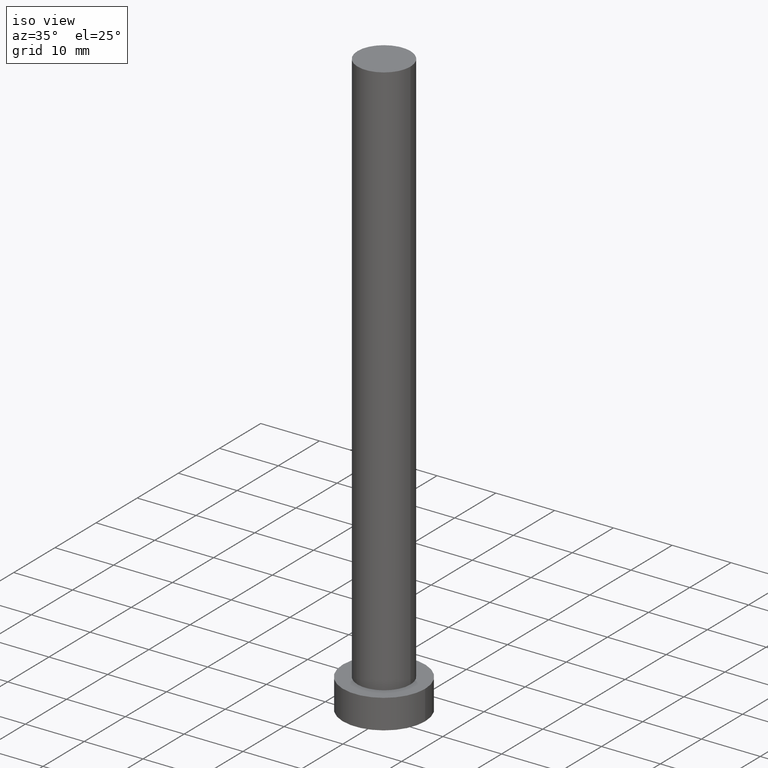
[diagram: clean part render]
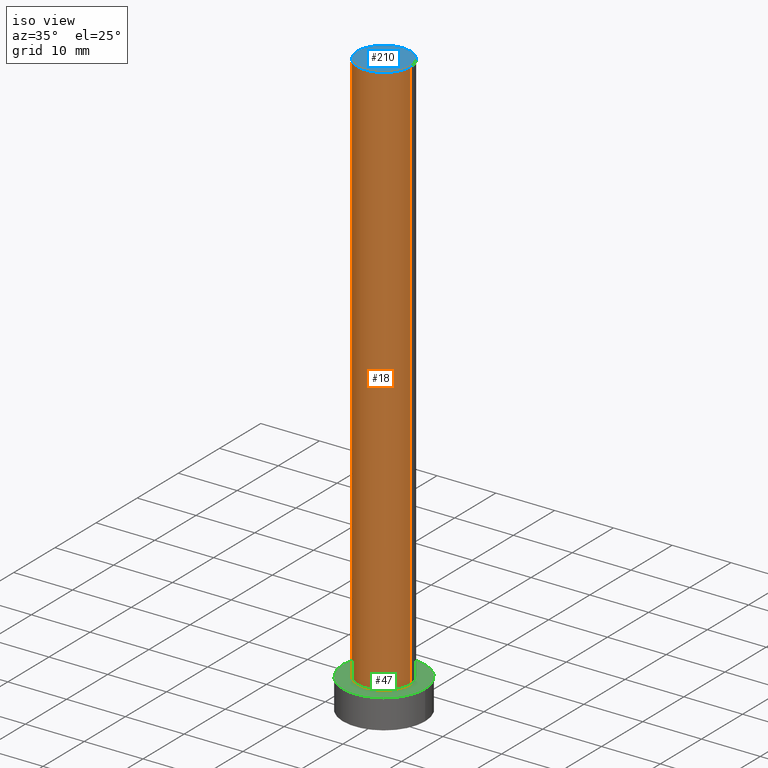
[diagram: same view with three faces highlighted in distinct colors, each labeled with its STEP entity id]
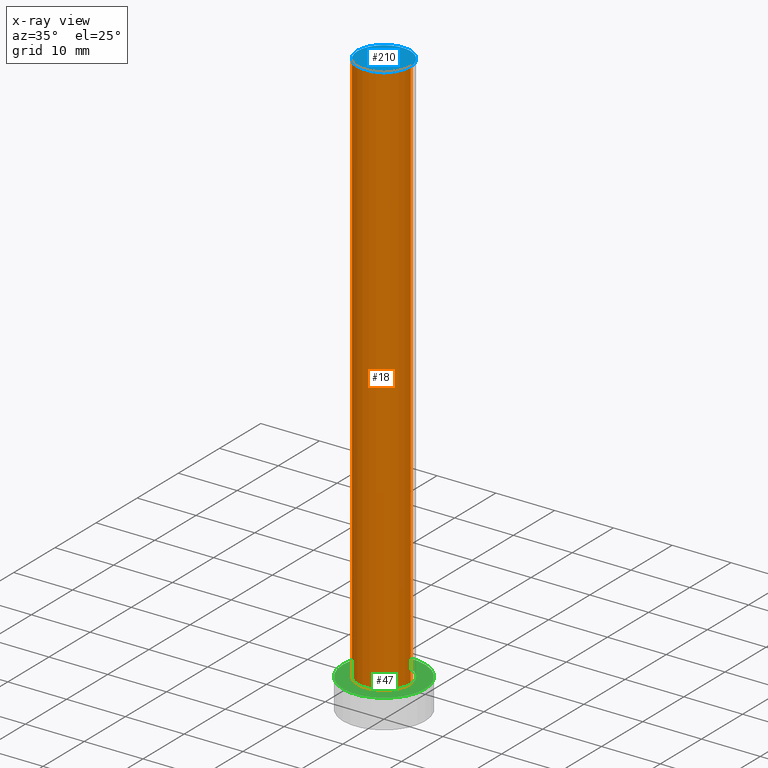
[diagram: x-ray of the same camera — body ghosted, the three highlighted faces saturated]
A machine part, iso view with three faces highlighted in distinct colors.
The next image is the same camera in x-ray (body ghosted, the three faces saturated) — at least one of them is partly hidden behind the body in this view.
Their STEP definitions:

[orange] entity #18 — the highlighted cylindrical surface (edge-blend (fillet) strip) has radius 4.5 mm, axis along (-0, -0, -1).
#2 = EDGE_CURVE ( 'NONE', #249, #144, #247, .T. ) ;
#7 = ORIENTED_EDGE ( 'NONE', *, *, #2, .F. ) ;
#9 = ORIENTED_EDGE ( 'NONE', *, *, #170, .T. ) ;
#11 = CARTESIAN_POINT ( 'NONE',  ( 4.500000000000000000, 5.510910596163088569E-16, 5.000000000000000000 ) ) ;
#13 = DIRECTION ( 'NONE',  ( -0.000000000000000000, -0.000000000000000000, -1.000000000000000000 ) ) ;
#16 = ORIENTED_EDGE ( 'NONE', *, *, #149, .T. ) ;
#17 = ORIENTED_EDGE ( 'NONE', *, *, #41, .F. ) ;
#18 = ADVANCED_FACE ( 'NONE', ( #220 ), #200, .T. ) ;
#27 = CARTESIAN_POINT ( 'NONE',  ( 4.500000000000000000, 5.510910596163088569E-16, 100.0000000000000000 ) ) ;
#29 = CARTESIAN_POINT ( 'NONE',  ( 0.000000000000000000, 0.000000000000000000, 100.0000000000000000 ) ) ;
#30 = CARTESIAN_POINT ( 'NONE',  ( -4.500000000000000000, 0.000000000000000000, 100.0000000000000000 ) ) ;
#39 = CARTESIAN_POINT ( 'NONE',  ( -4.500000000000000000, 0.000000000000000000, 5.000000000000000000 ) ) ;
#41 = EDGE_CURVE ( 'NONE', #45, #249, #232, .T. ) ;
#45 = VERTEX_POINT ( 'NONE', #222 ) ;
#53 = AXIS2_PLACEMENT_3D ( 'NONE', #29, #13, #89 ) ;
#62 = DIRECTION ( 'NONE',  ( -0.000000000000000000, -0.000000000000000000, -1.000000000000000000 ) ) ;
#87 = CARTESIAN_POINT ( 'NONE',  ( 0.000000000000000000, 0.000000000000000000, 5.000000000000000000 ) ) ;
#89 = DIRECTION ( 'NONE',  ( -1.000000000000000000, 0.000000000000000000, 0.000000000000000000 ) ) ;
#96 = VECTOR ( 'NONE', #62, 1000.000000000000000 ) ;
#111 = EDGE_LOOP ( 'NONE', ( #7, #17, #9, #16 ) ) ;
#122 = CARTESIAN_POINT ( 'NONE',  ( 0.000000000000000000, 0.000000000000000000, 100.0000000000000000 ) ) ;
#131 = AXIS2_PLACEMENT_3D ( 'NONE', #87, #203, #219 ) ;
#141 = DIRECTION ( 'NONE',  ( 0.000000000000000000, 0.000000000000000000, 1.000000000000000000 ) ) ;
#144 = VERTEX_POINT ( 'NONE', #11 ) ;
#148 = AXIS2_PLACEMENT_3D ( 'NONE', #122, #141, #201 ) ;
#149 = EDGE_CURVE ( 'NONE', #223, #144, #231, .T. ) ;
#160 = LINE ( 'NONE', #30, #211 ) ;
#170 = EDGE_CURVE ( 'NONE', #45, #223, #160, .T. ) ;
#173 = CARTESIAN_POINT ( 'NONE',  ( 4.500000000000000000, 5.510910596163088569E-16, 100.0000000000000000 ) ) ;
#200 = CYLINDRICAL_SURFACE ( 'NONE', #53, 4.500000000000000000 ) ;
#201 = DIRECTION ( 'NONE',  ( 1.000000000000000000, 0.000000000000000000, 0.000000000000000000 ) ) ;
#203 = DIRECTION ( 'NONE',  ( 0.000000000000000000, 0.000000000000000000, 1.000000000000000000 ) ) ;
#211 = VECTOR ( 'NONE', #248, 1000.000000000000000 ) ;
#219 = DIRECTION ( 'NONE',  ( 1.000000000000000000, 0.000000000000000000, 0.000000000000000000 ) ) ;
#220 = FACE_OUTER_BOUND ( 'NONE', #111, .T. ) ;
#222 = CARTESIAN_POINT ( 'NONE',  ( -4.500000000000000000, 0.000000000000000000, 100.0000000000000000 ) ) ;
#223 = VERTEX_POINT ( 'NONE', #39 ) ;
#231 = CIRCLE ( 'NONE', #131, 4.500000000000000000 ) ;
#232 = CIRCLE ( 'NONE', #148, 4.500000000000000000 ) ;
#247 = LINE ( 'NONE', #27, #96 ) ;
#248 = DIRECTION ( 'NONE',  ( -0.000000000000000000, -0.000000000000000000, -1.000000000000000000 ) ) ;
#249 = VERTEX_POINT ( 'NONE', #173 ) ;

[blue] entity #210 — the highlighted planar face has unit normal (0, 0, 1).
#20 = EDGE_CURVE ( 'NONE', #249, #45, #159, .T. ) ;
#41 = EDGE_CURVE ( 'NONE', #45, #249, #232, .T. ) ;
#45 = VERTEX_POINT ( 'NONE', #222 ) ;
#50 = DIRECTION ( 'NONE',  ( 1.000000000000000000, 0.000000000000000000, -0.000000000000000000 ) ) ;
#63 = FACE_OUTER_BOUND ( 'NONE', #126, .T. ) ;
#72 = AXIS2_PLACEMENT_3D ( 'NONE', #251, #137, #50 ) ;
#85 = AXIS2_PLACEMENT_3D ( 'NONE', #162, #123, #217 ) ;
#122 = CARTESIAN_POINT ( 'NONE',  ( 0.000000000000000000, 0.000000000000000000, 100.0000000000000000 ) ) ;
#123 = DIRECTION ( 'NONE',  ( 0.000000000000000000, 0.000000000000000000, 1.000000000000000000 ) ) ;
#126 = EDGE_LOOP ( 'NONE', ( #205, #218 ) ) ;
#137 = DIRECTION ( 'NONE',  ( 0.000000000000000000, 0.000000000000000000, 1.000000000000000000 ) ) ;
#141 = DIRECTION ( 'NONE',  ( 0.000000000000000000, 0.000000000000000000, 1.000000000000000000 ) ) ;
#148 = AXIS2_PLACEMENT_3D ( 'NONE', #122, #141, #201 ) ;
#159 = CIRCLE ( 'NONE', #85, 4.500000000000000000 ) ;
#162 = CARTESIAN_POINT ( 'NONE',  ( 0.000000000000000000, 0.000000000000000000, 100.0000000000000000 ) ) ;
#163 = PLANE ( 'NONE',  #72 ) ;
#173 = CARTESIAN_POINT ( 'NONE',  ( 4.500000000000000000, 5.510910596163088569E-16, 100.0000000000000000 ) ) ;
#201 = DIRECTION ( 'NONE',  ( 1.000000000000000000, 0.000000000000000000, 0.000000000000000000 ) ) ;
#205 = ORIENTED_EDGE ( 'NONE', *, *, #41, .T. ) ;
#210 = ADVANCED_FACE ( 'NONE', ( #63 ), #163, .T. ) ;
#217 = DIRECTION ( 'NONE',  ( 1.000000000000000000, 0.000000000000000000, 0.000000000000000000 ) ) ;
#218 = ORIENTED_EDGE ( 'NONE', *, *, #20, .T. ) ;
#222 = CARTESIAN_POINT ( 'NONE',  ( -4.500000000000000000, 0.000000000000000000, 100.0000000000000000 ) ) ;
#232 = CIRCLE ( 'NONE', #148, 4.500000000000000000 ) ;
#249 = VERTEX_POINT ( 'NONE', #173 ) ;
#251 = CARTESIAN_POINT ( 'NONE',  ( 0.000000000000000000, 0.000000000000000000, 100.0000000000000000 ) ) ;

[green] entity #47 — the highlighted planar face has unit normal (0, 0, 1).
#8 = CARTESIAN_POINT ( 'NONE',  ( 7.000000000000000000, 8.572527594031473190E-16, 5.000000000000000000 ) ) ;
#10 = AXIS2_PLACEMENT_3D ( 'NONE', #125, #83, #46 ) ;
#11 = CARTESIAN_POINT ( 'NONE',  ( 4.500000000000000000, 5.510910596163088569E-16, 5.000000000000000000 ) ) ;
#25 = DIRECTION ( 'NONE',  ( 0.000000000000000000, 0.000000000000000000, 1.000000000000000000 ) ) ;
#33 = VERTEX_POINT ( 'NONE', #107 ) ;
#36 = AXIS2_PLACEMENT_3D ( 'NONE', #180, #25, #112 ) ;
#39 = CARTESIAN_POINT ( 'NONE',  ( -4.500000000000000000, 0.000000000000000000, 5.000000000000000000 ) ) ;
#43 = AXIS2_PLACEMENT_3D ( 'NONE', #199, #67, #196 ) ;
#46 = DIRECTION ( 'NONE',  ( 1.000000000000000000, 0.000000000000000000, 0.000000000000000000 ) ) ;
#47 = ADVANCED_FACE ( 'NONE', ( #139, #195 ), #90, .T. ) ;
#59 = DIRECTION ( 'NONE',  ( 1.000000000000000000, 0.000000000000000000, 0.000000000000000000 ) ) ;
#67 = DIRECTION ( 'NONE',  ( 0.000000000000000000, 0.000000000000000000, 1.000000000000000000 ) ) ;
#83 = DIRECTION ( 'NONE',  ( 0.000000000000000000, 0.000000000000000000, 1.000000000000000000 ) ) ;
#84 = ORIENTED_EDGE ( 'NONE', *, *, #133, .T. ) ;
#87 = CARTESIAN_POINT ( 'NONE',  ( 0.000000000000000000, 0.000000000000000000, 5.000000000000000000 ) ) ;
#90 = PLANE ( 'NONE',  #43 ) ;
#98 = EDGE_CURVE ( 'NONE', #144, #223, #145, .T. ) ;
#107 = CARTESIAN_POINT ( 'NONE',  ( -7.000000000000000000, 0.000000000000000000, 5.000000000000000000 ) ) ;
#108 = ORIENTED_EDGE ( 'NONE', *, *, #188, .T. ) ;
#112 = DIRECTION ( 'NONE',  ( 1.000000000000000000, 0.000000000000000000, 0.000000000000000000 ) ) ;
#125 = CARTESIAN_POINT ( 'NONE',  ( 0.000000000000000000, 0.000000000000000000, 5.000000000000000000 ) ) ;
#128 = VERTEX_POINT ( 'NONE', #8 ) ;
#131 = AXIS2_PLACEMENT_3D ( 'NONE', #87, #203, #219 ) ;
#133 = EDGE_CURVE ( 'NONE', #128, #33, #191, .T. ) ;
#138 = ORIENTED_EDGE ( 'NONE', *, *, #98, .F. ) ;
#139 = FACE_BOUND ( 'NONE', #182, .T. ) ;
#144 = VERTEX_POINT ( 'NONE', #11 ) ;
#145 = CIRCLE ( 'NONE', #36, 4.500000000000000000 ) ;
#149 = EDGE_CURVE ( 'NONE', #223, #144, #231, .T. ) ;
#172 = CIRCLE ( 'NONE', #221, 7.000000000000000000 ) ;
#180 = CARTESIAN_POINT ( 'NONE',  ( 0.000000000000000000, 0.000000000000000000, 5.000000000000000000 ) ) ;
#182 = EDGE_LOOP ( 'NONE', ( #185, #138 ) ) ;
#184 = CARTESIAN_POINT ( 'NONE',  ( 0.000000000000000000, 0.000000000000000000, 5.000000000000000000 ) ) ;
#185 = ORIENTED_EDGE ( 'NONE', *, *, #149, .F. ) ;
#188 = EDGE_CURVE ( 'NONE', #33, #128, #172, .T. ) ;
#191 = CIRCLE ( 'NONE', #10, 7.000000000000000000 ) ;
#195 = FACE_OUTER_BOUND ( 'NONE', #252, .T. ) ;
#196 = DIRECTION ( 'NONE',  ( 1.000000000000000000, 0.000000000000000000, -0.000000000000000000 ) ) ;
#199 = CARTESIAN_POINT ( 'NONE',  ( 0.000000000000000000, 0.000000000000000000, 5.000000000000000000 ) ) ;
#203 = DIRECTION ( 'NONE',  ( 0.000000000000000000, 0.000000000000000000, 1.000000000000000000 ) ) ;
#219 = DIRECTION ( 'NONE',  ( 1.000000000000000000, 0.000000000000000000, 0.000000000000000000 ) ) ;
#221 = AXIS2_PLACEMENT_3D ( 'NONE', #184, #244, #59 ) ;
#223 = VERTEX_POINT ( 'NONE', #39 ) ;
#231 = CIRCLE ( 'NONE', #131, 4.500000000000000000 ) ;
#244 = DIRECTION ( 'NONE',  ( 0.000000000000000000, 0.000000000000000000, 1.000000000000000000 ) ) ;
#252 = EDGE_LOOP ( 'NONE', ( #108, #84 ) ) ;